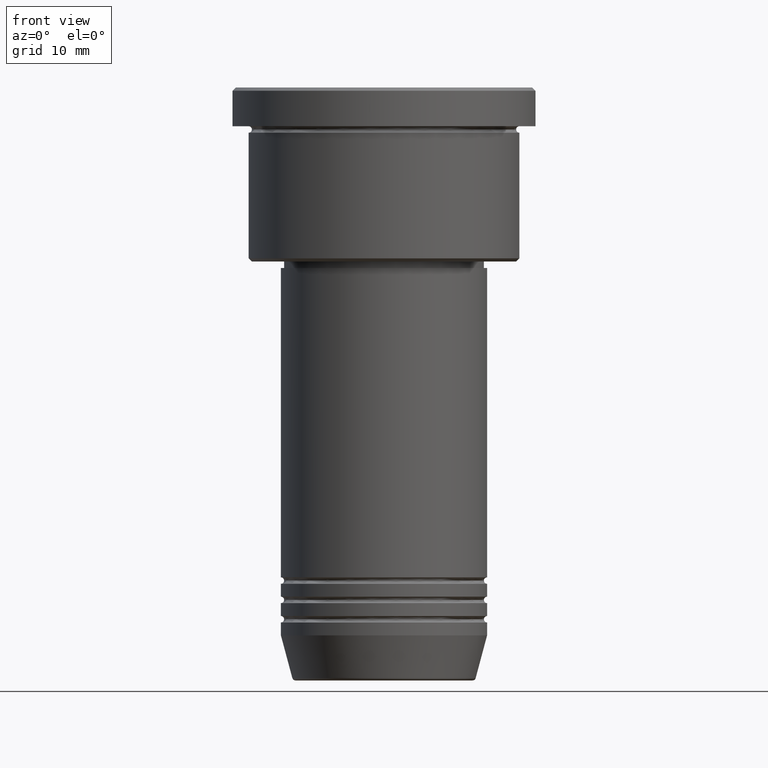
[diagram: clean part render]
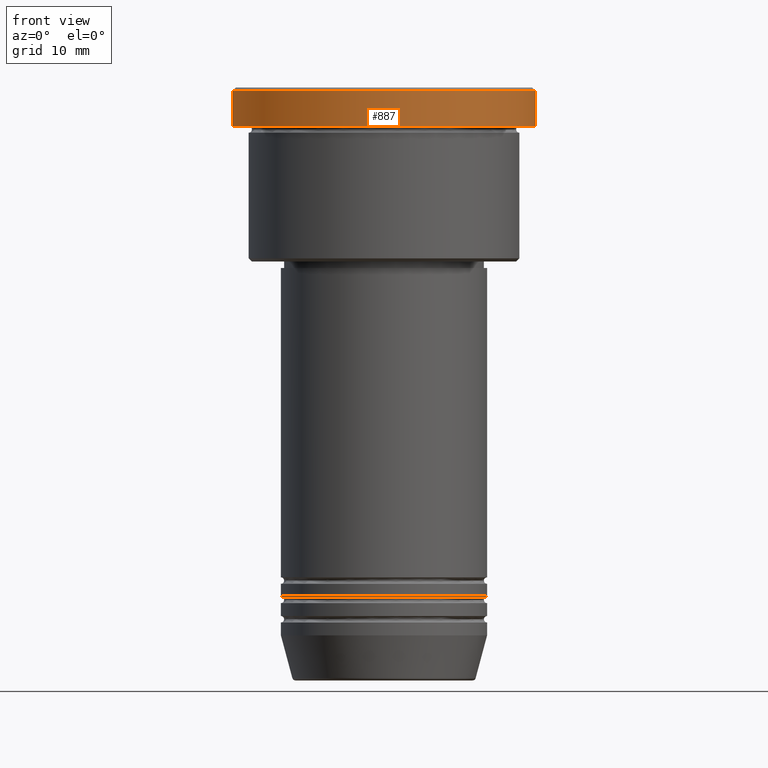
[diagram: same view with one face highlighted and labeled with its STEP entity id]
A machine part, front view. The second image highlights one B-rep face of the part: STEP entity #887.
In plain terms, the highlighted cylindrical surface (partial cylindrical patch) has radius 23.5 mm, axis along (-0, -0, 1).
Its self-contained STEP definition (entity closure, byte-faithful):
#86 = CARTESIAN_POINT ( 'NONE',  ( 0.000000000000000000, 0.000000000000000000, 0.000000000000000000 ) ) ;
#169 = DIRECTION ( 'NONE',  ( 1.000000000000000000, 0.000000000000000000, 0.000000000000000000 ) ) ;
#200 = ORIENTED_EDGE ( 'NONE', *, *, #433, .T. ) ;
#237 = CARTESIAN_POINT ( 'NONE',  ( 23.50000000000000000, 0.000000000000000000, 0.000000000000000000 ) ) ;
#241 = DIRECTION ( 'NONE',  ( -0.000000000000000000, -0.000000000000000000, 1.000000000000000000 ) ) ;
#272 = CARTESIAN_POINT ( 'NONE',  ( -23.50000000000000000, 2.877919977996280320E-15, 0.000000000000000000 ) ) ;
#289 = DIRECTION ( 'NONE',  ( -0.000000000000000000, -0.000000000000000000, 1.000000000000000000 ) ) ;
#304 = VECTOR ( 'NONE', #241, 1000.000000000000000 ) ;
#314 = EDGE_LOOP ( 'NONE', ( #446, #830, #1023, #200 ) ) ;
#348 = VERTEX_POINT ( 'NONE', #807 ) ;
#433 = EDGE_CURVE ( 'NONE', #1043, #348, #632, .T. ) ;
#442 = CARTESIAN_POINT ( 'NONE',  ( 0.000000000000000000, 0.000000000000000000, -0.4999999999999865663 ) ) ;
#446 = ORIENTED_EDGE ( 'NONE', *, *, #452, .F. ) ;
#452 = EDGE_CURVE ( 'NONE', #968, #348, #1082, .T. ) ;
#470 = CARTESIAN_POINT ( 'NONE',  ( -23.50000000000000000, 2.877919977996280320E-15, -5.999999999999994671 ) ) ;
#506 = AXIS2_PLACEMENT_3D ( 'NONE', #86, #289, #1006 ) ;
#600 = VECTOR ( 'NONE', #827, 1000.000000000000000 ) ;
#632 = CIRCLE ( 'NONE', #1014, 23.50000000000000000 ) ;
#638 = EDGE_CURVE ( 'NONE', #1012, #1043, #1066, .T. ) ;
#645 = CARTESIAN_POINT ( 'NONE',  ( 23.50000000000000000, 0.000000000000000000, -0.4999999999999865663 ) ) ;
#663 = CARTESIAN_POINT ( 'NONE',  ( 23.50000000000000000, 0.000000000000000000, -5.999999999999994671 ) ) ;
#765 = EDGE_CURVE ( 'NONE', #968, #1012, #965, .T. ) ;
#807 = CARTESIAN_POINT ( 'NONE',  ( -23.50000000000000000, 2.877919977996280320E-15, -0.4999999999999865663 ) ) ;
#814 = AXIS2_PLACEMENT_3D ( 'NONE', #815, #1001, #169 ) ;
#815 = CARTESIAN_POINT ( 'NONE',  ( 0.000000000000000000, 0.000000000000000000, -5.999999999999994671 ) ) ;
#827 = DIRECTION ( 'NONE',  ( -0.000000000000000000, -0.000000000000000000, 1.000000000000000000 ) ) ;
#830 = ORIENTED_EDGE ( 'NONE', *, *, #765, .T. ) ;
#887 = ADVANCED_FACE ( 'NONE', ( #1079 ), #911, .T. ) ;
#911 = CYLINDRICAL_SURFACE ( 'NONE', #506, 23.50000000000000000 ) ;
#912 = DIRECTION ( 'NONE',  ( 0.000000000000000000, 0.000000000000000000, -1.000000000000000000 ) ) ;
#965 = CIRCLE ( 'NONE', #814, 23.50000000000000000 ) ;
#968 = VERTEX_POINT ( 'NONE', #470 ) ;
#1001 = DIRECTION ( 'NONE',  ( -0.000000000000000000, -0.000000000000000000, 1.000000000000000000 ) ) ;
#1006 = DIRECTION ( 'NONE',  ( 1.000000000000000000, 0.000000000000000000, 0.000000000000000000 ) ) ;
#1012 = VERTEX_POINT ( 'NONE', #663 ) ;
#1014 = AXIS2_PLACEMENT_3D ( 'NONE', #442, #912, #1170 ) ;
#1023 = ORIENTED_EDGE ( 'NONE', *, *, #638, .T. ) ;
#1043 = VERTEX_POINT ( 'NONE', #645 ) ;
#1066 = LINE ( 'NONE', #237, #304 ) ;
#1079 = FACE_OUTER_BOUND ( 'NONE', #314, .T. ) ;
#1082 = LINE ( 'NONE', #272, #600 ) ;
#1170 = DIRECTION ( 'NONE',  ( 1.000000000000000000, 0.000000000000000000, 0.000000000000000000 ) ) ;